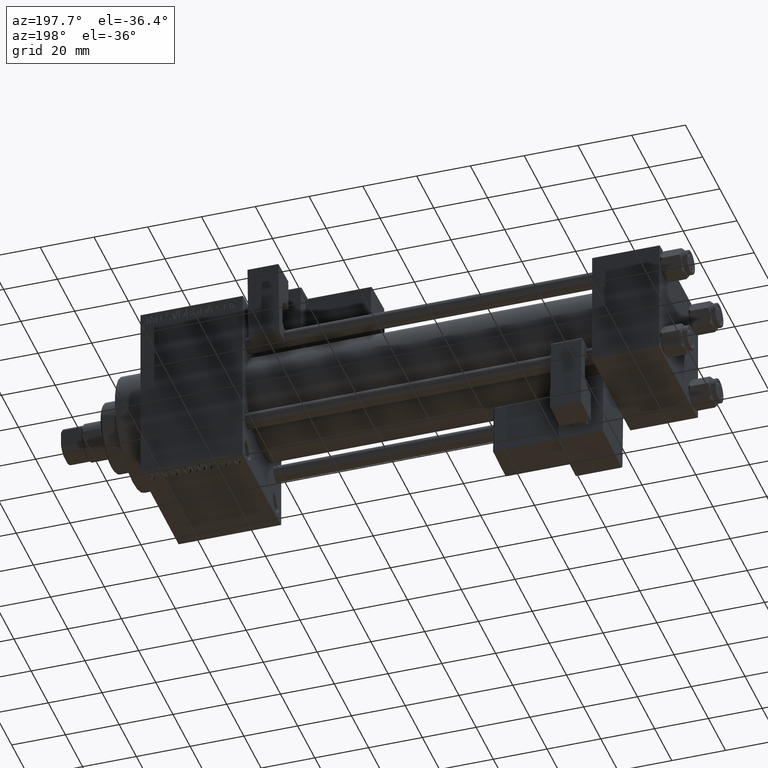
[diagram: clean part render]
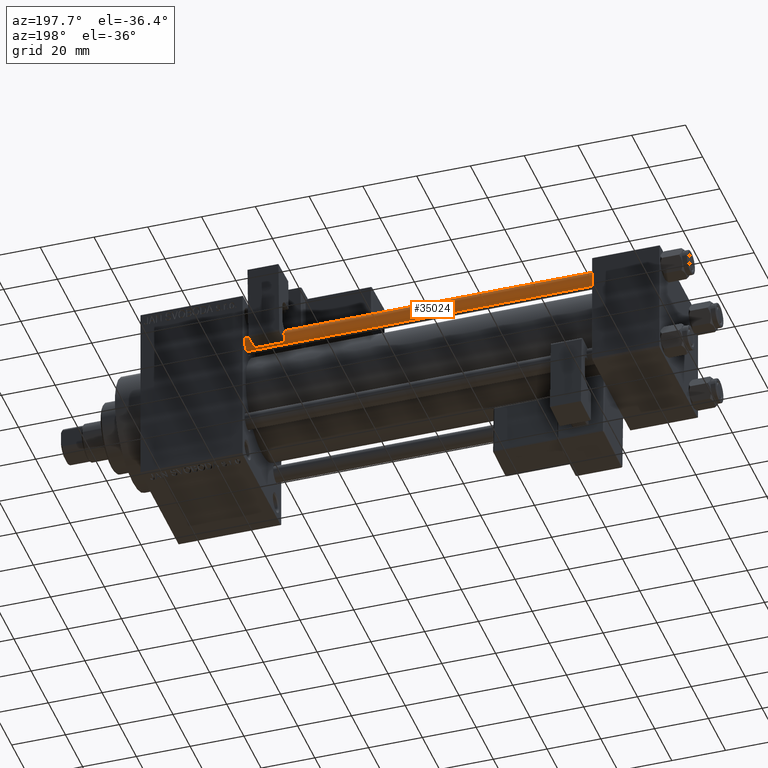
[diagram: same view with one face highlighted and labeled with its STEP entity id]
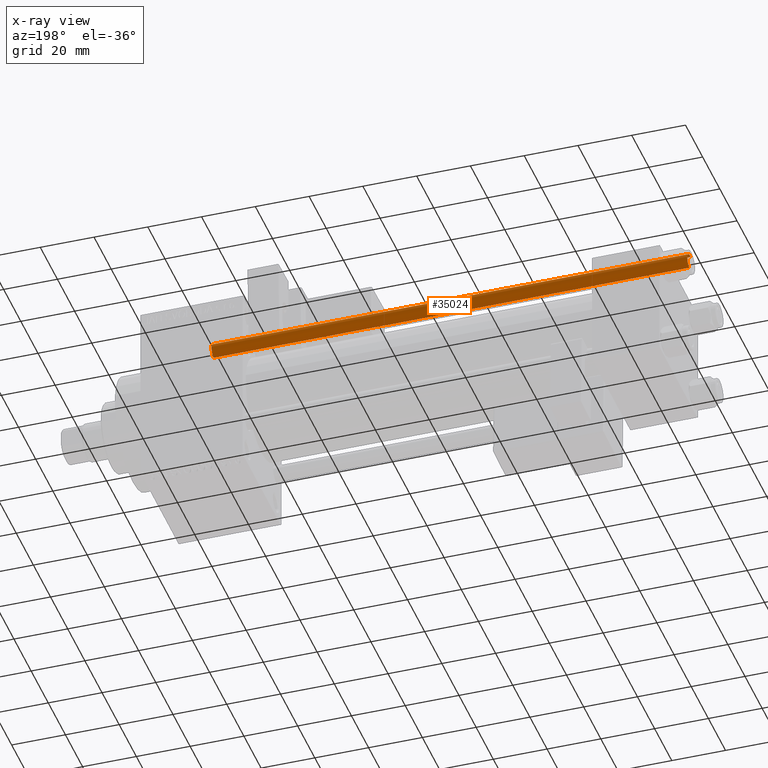
[diagram: x-ray of the same camera — body ghosted, the highlighted face saturated]
A machine part, auxiliary view. The second image highlights one B-rep face of the part: STEP entity #35024.
The next image is the same camera in x-ray: the body ghosted, the highlighted face saturated — about 0% of this face is hidden behind the body in this view.
In plain terms, the highlighted cylindrical surface (edge-blend (fillet) strip) has radius 3 mm, axis along (-1, -0, 0).
Its self-contained STEP definition (entity closure, byte-faithful):
#3603 = VERTEX_POINT ( 'NONE', #45445 ) ;
#8402 = EDGE_CURVE ( 'NONE', #31983, #11294, #10120, .T. ) ;
#10120 = CIRCLE ( 'NONE', #22962, 3.000000000000000444 ) ;
#10696 = CARTESIAN_POINT ( 'NONE',  ( 3.000000000000000444, 3.673940397442060361E-16, 178.0000000000000000 ) ) ;
#10916 = CARTESIAN_POINT ( 'NONE',  ( 3.000000000000000444, 3.673940397442060361E-16, 0.5000000000000281997 ) ) ;
#11294 = VERTEX_POINT ( 'NONE', #37070 ) ;
#15015 = DIRECTION ( 'NONE',  ( 1.000000000000000000, 0.000000000000000000, 0.000000000000000000 ) ) ;
#16007 = CARTESIAN_POINT ( 'NONE',  ( -3.000000000000000444, 0.000000000000000000, 178.0000000000000000 ) ) ;
#16248 = LINE ( 'NONE', #16007, #46599 ) ;
#17453 = AXIS2_PLACEMENT_3D ( 'NONE', #45115, #18534, #26561 ) ;
#18476 = DIRECTION ( 'NONE',  ( -0.000000000000000000, -0.000000000000000000, 1.000000000000000000 ) ) ;
#18534 = DIRECTION ( 'NONE',  ( -0.000000000000000000, -0.000000000000000000, -1.000000000000000000 ) ) ;
#19285 = DIRECTION ( 'NONE',  ( 0.000000000000000000, 0.000000000000000000, -1.000000000000000000 ) ) ;
#22682 = AXIS2_PLACEMENT_3D ( 'NONE', #23773, #19285, #15015 ) ;
#22962 = AXIS2_PLACEMENT_3D ( 'NONE', #42058, #18476, #37812 ) ;
#23773 = CARTESIAN_POINT ( 'NONE',  ( 0.000000000000000000, 0.000000000000000000, 177.5000000000000000 ) ) ;
#25359 = ORIENTED_EDGE ( 'NONE', *, *, #27516, .T. ) ;
#26561 = DIRECTION ( 'NONE',  ( -1.000000000000000000, 0.000000000000000000, 0.000000000000000000 ) ) ;
#27234 = EDGE_CURVE ( 'NONE', #30767, #3603, #37955, .T. ) ;
#27325 = DIRECTION ( 'NONE',  ( -0.000000000000000000, -0.000000000000000000, -1.000000000000000000 ) ) ;
#27516 = EDGE_CURVE ( 'NONE', #3603, #31983, #33792, .T. ) ;
#28069 = ORIENTED_EDGE ( 'NONE', *, *, #45220, .F. ) ;
#28805 = CARTESIAN_POINT ( 'NONE',  ( -3.000000000000000444, 0.000000000000000000, 177.5000000000000000 ) ) ;
#29837 = CYLINDRICAL_SURFACE ( 'NONE', #17453, 3.000000000000000444 ) ;
#30767 = VERTEX_POINT ( 'NONE', #28805 ) ;
#31385 = EDGE_LOOP ( 'NONE', ( #36498, #25359, #41250, #28069 ) ) ;
#31983 = VERTEX_POINT ( 'NONE', #10916 ) ;
#33105 = FACE_OUTER_BOUND ( 'NONE', #31385, .T. ) ;
#33792 = LINE ( 'NONE', #10696, #45923 ) ;
#35024 = ADVANCED_FACE ( 'NONE', ( #33105 ), #29837, .T. ) ;
#36498 = ORIENTED_EDGE ( 'NONE', *, *, #27234, .T. ) ;
#37070 = CARTESIAN_POINT ( 'NONE',  ( -3.000000000000000444, 0.000000000000000000, 0.5000000000000281997 ) ) ;
#37309 = DIRECTION ( 'NONE',  ( -0.000000000000000000, -0.000000000000000000, -1.000000000000000000 ) ) ;
#37812 = DIRECTION ( 'NONE',  ( 1.000000000000000000, 0.000000000000000000, 0.000000000000000000 ) ) ;
#37955 = CIRCLE ( 'NONE', #22682, 3.000000000000000444 ) ;
#41250 = ORIENTED_EDGE ( 'NONE', *, *, #8402, .T. ) ;
#42058 = CARTESIAN_POINT ( 'NONE',  ( 0.000000000000000000, 0.000000000000000000, 0.5000000000000281997 ) ) ;
#45115 = CARTESIAN_POINT ( 'NONE',  ( 0.000000000000000000, 0.000000000000000000, 178.0000000000000000 ) ) ;
#45220 = EDGE_CURVE ( 'NONE', #30767, #11294, #16248, .T. ) ;
#45445 = CARTESIAN_POINT ( 'NONE',  ( 3.000000000000000444, 3.673940397442060361E-16, 177.5000000000000000 ) ) ;
#45923 = VECTOR ( 'NONE', #37309, 1000.000000000000000 ) ;
#46599 = VECTOR ( 'NONE', #27325, 1000.000000000000000 ) ;